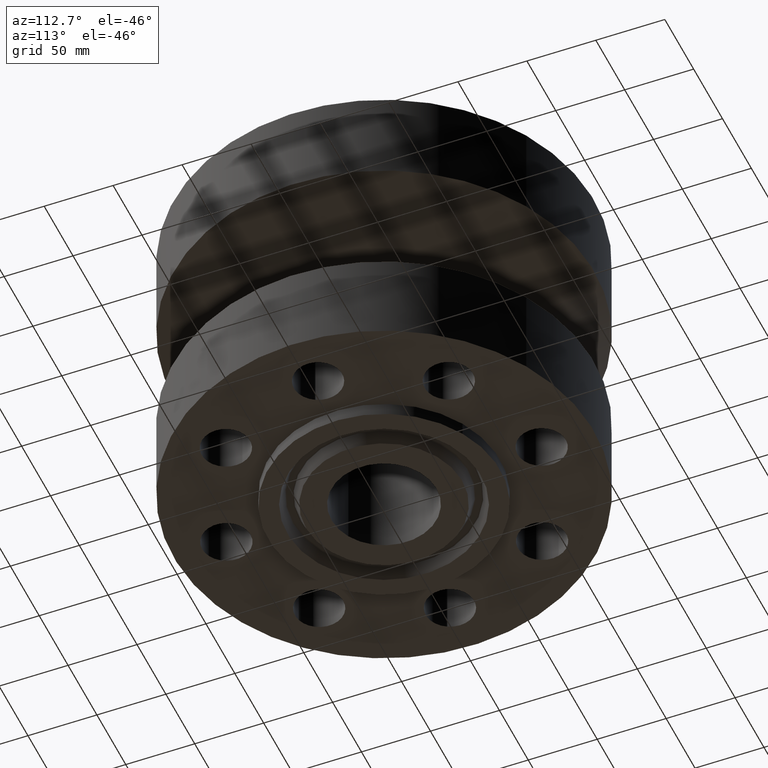
[diagram: clean part render]
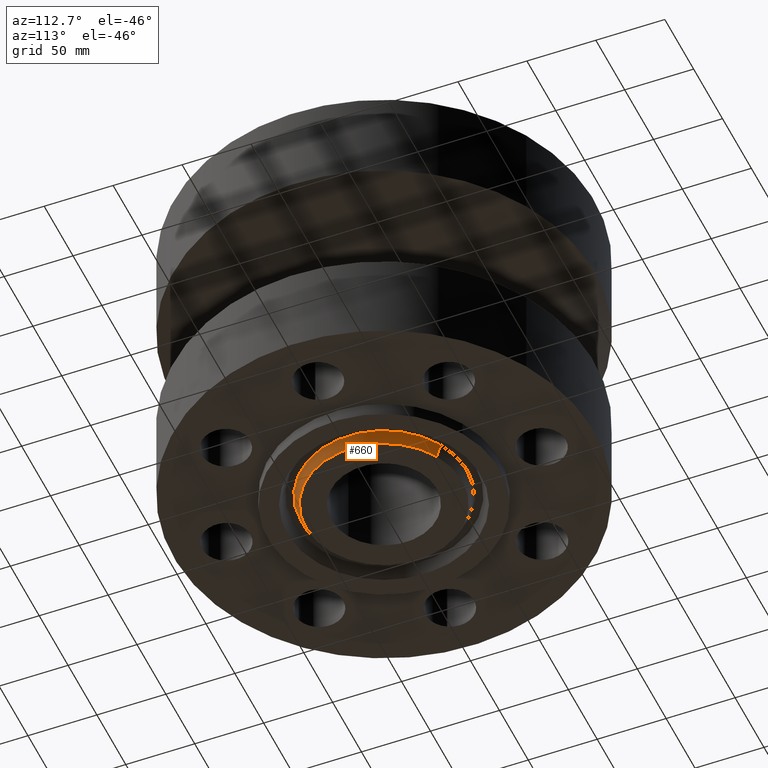
[diagram: same view with one face highlighted and labeled with its STEP entity id]
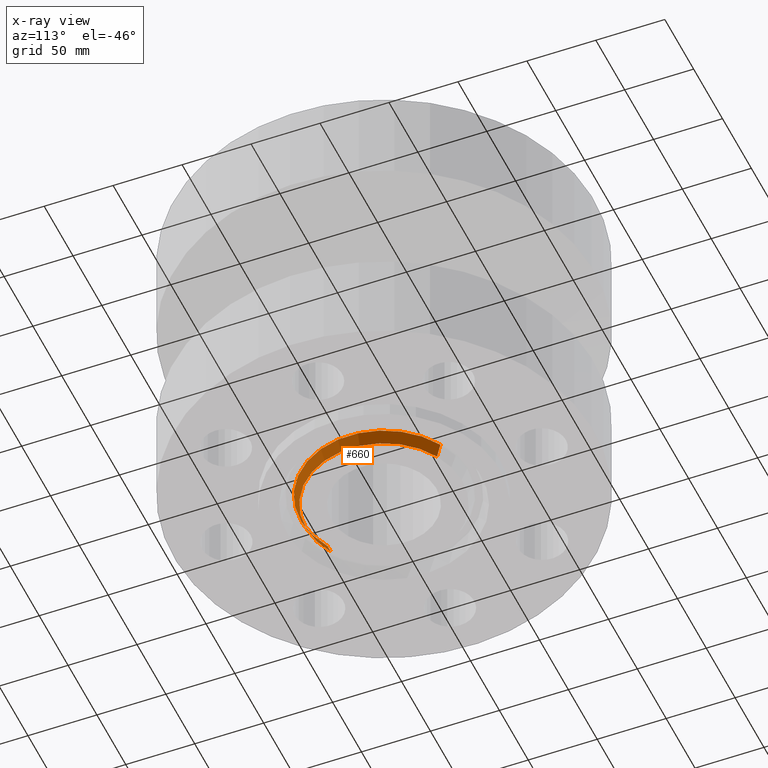
[diagram: x-ray of the same camera — body ghosted, the highlighted face saturated]
A machine part, auxiliary view. The second image highlights one B-rep face of the part: STEP entity #660.
The next image is the same camera in x-ray: the body ghosted, the highlighted face saturated — about 0% of this face is hidden behind the body in this view.
In plain terms, the highlighted conical surface has half-angle 23 deg.
Its self-contained STEP definition (entity closure, byte-faithful):
#606=AXIS2_PLACEMENT_3D('Circle Axis2P3D',#604,#605,$) ;
#621=AXIS2_PLACEMENT_3D('Cone Axis2P3D',#618,#619,#620) ;
#651=AXIS2_PLACEMENT_3D('Circle Axis2P3D',#649,#650,$) ;
#599=CARTESIAN_POINT('Vertex',(-1.07127636602,-1.96095823455,-0.375000000002)) ;
#601=CARTESIAN_POINT('Vertex',(1.07127636602,1.96095823455,-0.375000000002)) ;
#604=CARTESIAN_POINT('Axis2P3D Location',(0.,0.,-0.375000000001)) ;
#618=CARTESIAN_POINT('Axis2P3D Location',(0.,0.,-0.375000000002)) ;
#623=CARTESIAN_POINT('Line Origine',(-1.10552773481,-2.02365494457,-0.206691969453)) ;
#627=CARTESIAN_POINT('Vertex',(-1.1397791036,-2.0863516546,-0.0383839389053)) ;
#634=CARTESIAN_POINT('Vertex',(1.1397791036,2.0863516546,-0.0383839389053)) ;
#637=CARTESIAN_POINT('Line Origine',(1.10552773481,2.02365494457,-0.206691969453)) ;
#649=CARTESIAN_POINT('Axis2P3D Location',(0.,0.,-0.0383839389053)) ;
#605=DIRECTION('Axis2P3D Direction',(0.,0.,-0.0393700787402)) ;
#619=DIRECTION('Axis2P3D Direction',(-0.,-0.,0.0393700787402)) ;
#620=DIRECTION('Axis2P3D XDirection',(-0.0188750212049,-0.0345504945626,0.)) ;
#624=DIRECTION('Vector Direction',(-0.00737505833565,-0.0134999537303,0.0362403485611)) ;
#638=DIRECTION('Vector Direction',(0.00737505833565,0.0134999537303,0.0362403485611)) ;
#650=DIRECTION('Axis2P3D Direction',(-0.,0.,0.0393700787402)) ;
#625=VECTOR('Line Direction',#624,0.0393700787402) ;
#639=VECTOR('Line Direction',#638,0.0393700787402) ;
#655=ORIENTED_EDGE('',*,*,#608,.F.) ;
#656=ORIENTED_EDGE('',*,*,#641,.T.) ;
#657=ORIENTED_EDGE('',*,*,#653,.T.) ;
#658=ORIENTED_EDGE('',*,*,#629,.F.) ;
#660=ADVANCED_FACE('PartBody',(#659),#622,.T.) ;
#607=CIRCLE('generated circle',#606,2.23450000001) ;
#652=CIRCLE('generated circle',#651,2.37738504068) ;
#622=CONICAL_SURFACE('Cone',#621,2.23450000001,0.401425727959) ;
#608=EDGE_CURVE('',#602,#600,#607,.T.) ;
#629=EDGE_CURVE('',#600,#628,#626,.T.) ;
#641=EDGE_CURVE('',#602,#635,#640,.T.) ;
#653=EDGE_CURVE('',#635,#628,#652,.F.) ;
#654=EDGE_LOOP('',(#655,#656,#657,#658)) ;
#659=FACE_OUTER_BOUND('',#654,.T.) ;
#626=LINE('Line',#623,#625) ;
#640=LINE('Line',#637,#639) ;
#600=VERTEX_POINT('',#599) ;
#602=VERTEX_POINT('',#601) ;
#628=VERTEX_POINT('',#627) ;
#635=VERTEX_POINT('',#634) ;